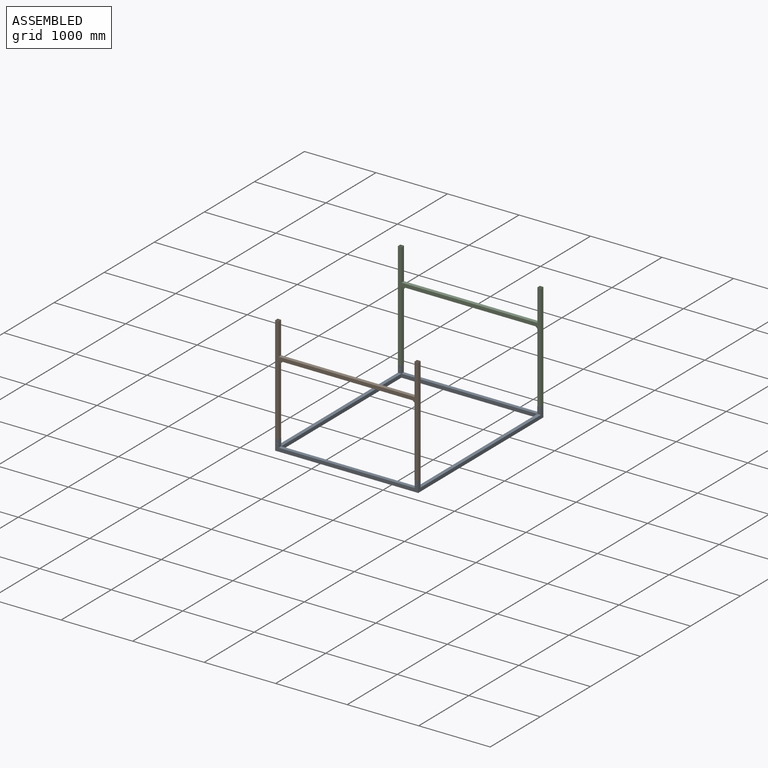
[diagram: assembled view]
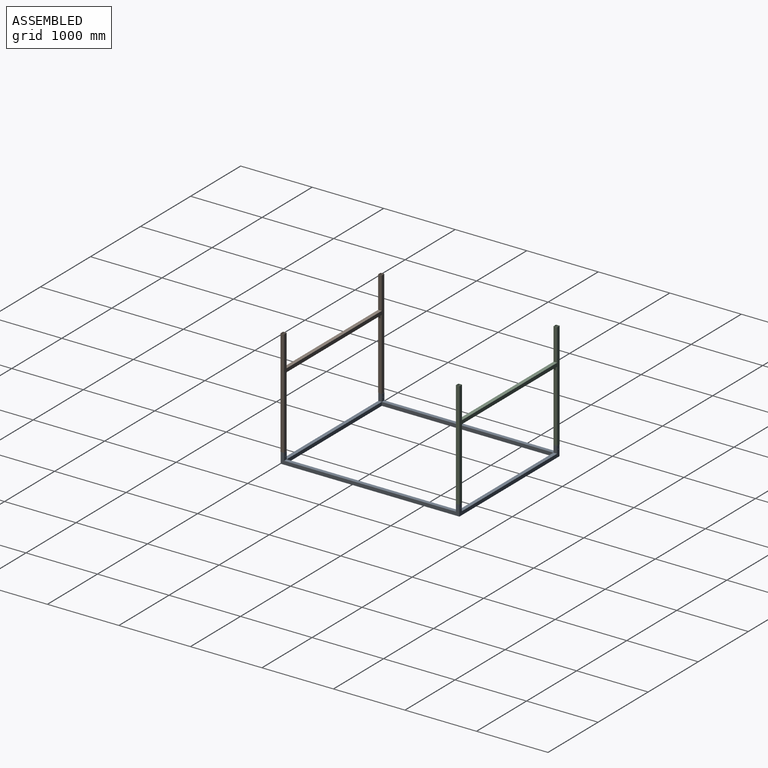
[diagram: assembled view, second angle]
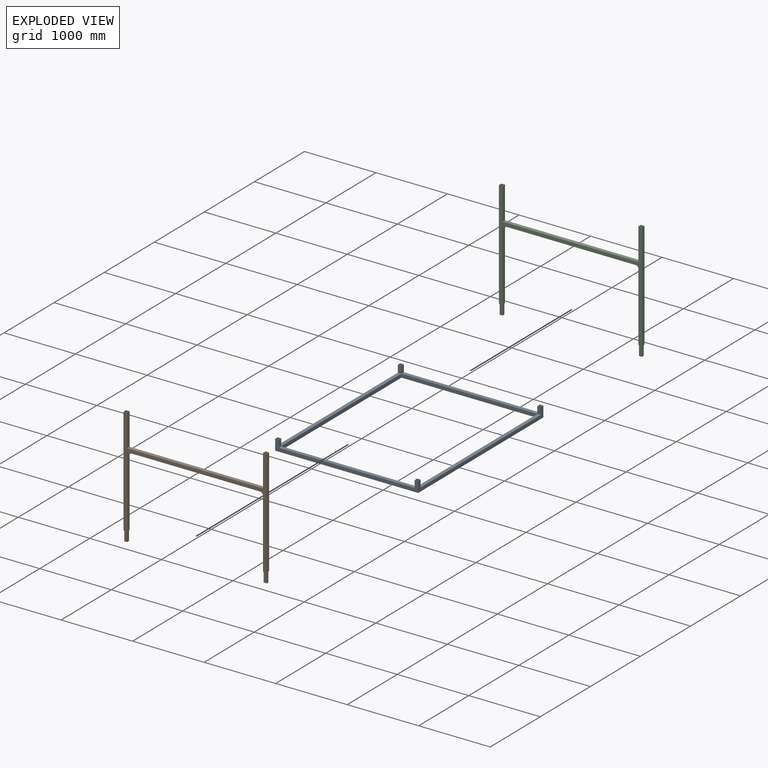
[diagram: exploded view]
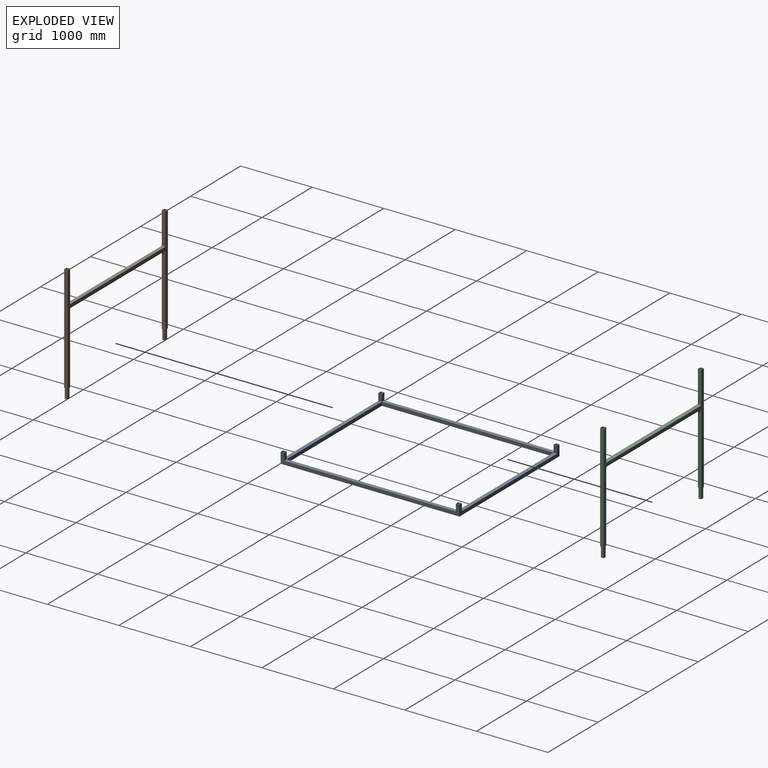
[diagram: exploded view, second angle]
ASSEMBLY  parts=3 mates=2
PART A: 54 faces, bbox 2000x2500x150 mm
  f0: plane 2410x40mm, normal (0,0,-1), area 96400mm2, adj f4,f8,f14,f19
  f1: plane 1910x40mm, normal (0,0,-1), area 76400mm2, adj f5,f7,f18,f20
  f2: plane 2410x40mm, normal (0,0,-1), area 96400mm2, adj f6,f10,f15,f17
  f3: plane 1910x40mm, normal (0,0,-1), area 76400mm2, adj f9,f11,f13,f16
  f4: plane 2410x40mm, normal (-1,0,0), area 96400mm2, adj f0,f5,f11,f12
  f5: plane 1910x40mm, normal (0,1,0), area 76400mm2, adj f1,f4,f6,f12
  f6: plane 2410x40mm, normal (1,0,0), area 96400mm2, adj f2,f5,f11,f12
  f7: plane 1990x145mm, normal (0,-1,0), area 87842.9mm2, adj f1,f8,f10,f12,f18,f20,f23,f24
  f8: plane 2490x145mm, normal (1,0,0), area 108000mm2, adj f0,f7,f9,f12,f14,f19,f21,f24
  f9: plane 1990x145mm, normal (0,1,0), area 87842.9mm2, adj f3,f8,f10,f12,f13,f16,f21,f22
  f10: plane 2490x145mm, normal (-1,0,0), area 108000mm2, adj f2,f7,f9,f12,f15,f17,f22,f23
  f11: plane 1910x40mm, normal (0,-1,0), area 76400mm2, adj f3,f4,f6,f12
  f12: plane 2490x1990mm, normal (0,0,1), area 352000mm2, adj f4,f5,f6,f7,f8,f9,f10,f11
  f13: plane 105x40mm, normal (-1,0,0), area 4200mm2, adj f3,f9,f14,f21
  f14: plane 105x40mm, normal (0,-1,0), area 4121.5mm2, adj f0,f8,f13,f21,f49
  f15: plane 105x40mm, normal (0,-1,0), area 4121.5mm2, adj f2,f10,f16,f22,f48
  f16: plane 105x40mm, normal (1,0,0), area 4200mm2, adj f3,f9,f15,f22
  f17: plane 105x40mm, normal (0,1,0), area 4121.5mm2, adj f2,f10,f18,f23,f47
  f18: plane 105x40mm, normal (1,0,0), area 4200mm2, adj f1,f7,f17,f23
  f19: plane 105x40mm, normal (0,1,0), area 4121.5mm2, adj f0,f8,f20,f24,f46
  f20: plane 105x40mm, normal (-1,0,0), area 4200mm2, adj f1,f7,f19,f24
  f21: plane 50x50mm, normal (0,0,1), area 900mm2, adj f8,f9,f13,f14,f33,f34,f38,f39
  f22: plane 50x50mm, normal (0,0,1), area 900mm2, adj f9,f10,f15,f16,f34,f35,f40,f41
  f23: plane 50x50mm, normal (0,0,1), area 900mm2, adj f7,f10,f17,f18,f32,f35,f42,f43
  f24: plane 50x50mm, normal (0,0,1), area 900mm2, adj f7,f8,f19,f20,f32,f33,f44,f45
  f25: plane 2400x50mm, normal (0,0,1), area 120000mm2, adj f29,f33,f39,f44
  f26: plane 1900x50mm, normal (0,0,1), area 95000mm2, adj f30,f32,f43,f45
  f27: plane 2400x50mm, normal (0,0,1), area 120000mm2, adj f31,f35,f40,f42
  f28: plane 1900x50mm, normal (0,0,1), area 95000mm2, adj f34,f36,f38,f41
  f29: plane 2400x50mm, normal (1,0,0), area 120000mm2, adj f25,f30,f36,f37
  f30: plane 1900x50mm, normal (0,-1,0), area 95000mm2, adj f26,f29,f31,f37
  f31: plane 2400x50mm, normal (-1,0,0), area 120000mm2, adj f27,f30,f36,f37
  f32: plane 2000x150mm, normal (0,1,0), area 109842.9mm2, adj f23,f24,f26,f33,f35,f37,f43,f45
  f33: plane 2500x150mm, normal (-1,0,0), area 135000mm2, adj f21,f24,f25,f32,f34,f37,f39,f44
  f34: plane 2000x150mm, normal (0,-1,0), area 109842.9mm2, adj f21,f22,f28,f33,f35,f37,f38,f41
  f35: plane 2500x150mm, normal (1,0,0), area 135000mm2, adj f22,f23,f27,f32,f34,f37,f40,f42
  f36: plane 1900x50mm, normal (0,1,0), area 95000mm2, adj f28,f29,f31,f37
  f37: plane 2500x2000mm, normal (0,0,-1), area 440000mm2, adj f29,f30,f31,f32,f33,f34,f35,f36
  f38: plane 100x50mm, normal (1,0,0), area 5000mm2, adj f21,f28,f34,f39
  f39: plane 100x50mm, normal (0,1,0), area 4921.5mm2, adj f21,f25,f33,f38,f49
  f40: plane 100x50mm, normal (0,1,0), area 4921.5mm2, adj f22,f27,f35,f41,f48
  f41: plane 100x50mm, normal (-1,0,0), area 5000mm2, adj f22,f28,f34,f40
  f42: plane 100x50mm, normal (0,-1,0), area 4921.5mm2, adj f23,f27,f35,f43,f47
  f43: plane 100x50mm, normal (-1,0,0), area 5000mm2, adj f23,f26,f32,f42
  f44: plane 100x50mm, normal (0,-1,0), area 4921.5mm2, adj f24,f25,f33,f45,f46
  f45: plane 100x50mm, normal (1,0,0), area 5000mm2, adj f24,f26,f32,f44
  f46: cylinder r=5mm len=10mm, axis (0,1,0), area 157.1mm2, adj f19,f44
  f47: cylinder r=5mm len=10mm, axis (0,1,0), area 157.1mm2, adj f17,f42
  f48: cylinder r=5mm len=10mm, axis (0,1,0), area 157.1mm2, adj f15,f40
  f49: cylinder r=5mm len=10mm, axis (0,1,0), area 157.1mm2, adj f14,f39
  f50: cylinder r=5mm len=10mm, axis (0,1,0), area 157.1mm2, adj f9,f34
  f51: cylinder r=5mm len=10mm, axis (0,1,0), area 157.1mm2, adj f9,f34
  f52: cylinder r=5mm len=10mm, axis (0,1,0), area 157.1mm2, adj f7,f32
  f53: cylinder r=5mm len=10mm, axis (0,1,0), area 157.1mm2, adj f7,f32
PART B: 54 faces, bbox 2000x50x1640 mm
  f0: plane 50x50mm, normal (0,0,1), area 900mm2, adj f10,f11,f14,f15,f36,f37,f40,f41
  f1: plane 50x50mm, normal (0,0,1), area 900mm2, adj f7,f13,f14,f15,f33,f39,f40,f41
  f2: plane 40x38mm, normal (0,0,-1), area 680mm2, adj f26,f27,f28,f29,f46,f47,f48,f49
  f3: plane 40x38mm, normal (0,0,-1), area 680mm2, adj f22,f23,f24,f25,f42,f43,f44,f45
  f4: plane 50x50mm, normal (0,0,-1), area 980mm2, adj f6,f10,f14,f15,f26,f27,f28,f29
  f5: plane 50x50mm, normal (0,0,-1), area 980mm2, adj f7,f8,f14,f15,f22,f23,f24,f25
  f6: plane 1000x50mm, normal (-1,0,0), area 49500mm2, adj f4,f9,f14,f15,f19,f20,f21
  f7: plane 1500x50mm, normal (-1,0,0), area 75000mm2, adj f1,f5,f14,f15
  f8: plane 1000x50mm, normal (1,0,0), area 49500mm2, adj f5,f9,f14,f15,f16,f17,f18
  f9: plane 1900x50mm, normal (0,0,-1), area 94000mm2, adj f6,f8,f14,f15,f16,f17,f18,f19
  f10: plane 1500x50mm, normal (1,0,0), area 75000mm2, adj f0,f4,f14,f15
  f11: plane 450x50mm, normal (-1,0,0), area 22500mm2, adj f0,f12,f14,f15
  f12: plane 1900x50mm, normal (0,0,1), area 95000mm2, adj f11,f13,f14,f15
  f13: plane 450x50mm, normal (1,0,0), area 22500mm2, adj f1,f12,f14,f15
  f14: plane 2000x1500mm, normal (0,-1,0), area 245000mm2, adj f0,f1,f4,f5,f6,f7,f8,f9
  f15: plane 2000x1500mm, normal (0,1,0), area 245000mm2, adj f0,f1,f4,f5,f6,f7,f8,f9
  f16: plane 50x50mm, normal (0,1,0), area 1250mm2, adj f8,f9,f18
  f17: plane 50x50mm, normal (0,-1,0), area 1250mm2, adj f8,f9,f18
  f18: plane 50x50mm, normal (0.71,0,-0.71), area 707.1mm2, adj f8,f9,f16,f17
  f19: plane 50x50mm, normal (0,1,0), area 1250mm2, adj f6,f9,f21
  f20: plane 50x50mm, normal (0,-1,0), area 1250mm2, adj f6,f9,f21
  f21: plane 50x50mm, normal (-0.71,0,-0.71), area 707.1mm2, adj f6,f9,f19,f20
  f22: plane 140x38mm, normal (-1,0,0), area 5320mm2, adj f3,f5,f24,f25
  f23: plane 140x38mm, normal (1,0,0), area 5320mm2, adj f3,f5,f24,f25
  f24: plane 140x40mm, normal (0,1,0), area 5521.5mm2, adj f3,f5,f22,f23,f53
  f25: plane 140x40mm, normal (0,-1,0), area 5521.5mm2, adj f3,f5,f22,f23,f52
  f26: plane 140x38mm, normal (1,0,0), area 5320mm2, adj f2,f4,f28,f29
  f27: plane 140x38mm, normal (-1,0,0), area 5320mm2, adj f2,f4,f28,f29
  f28: plane 140x40mm, normal (0,1,0), area 5521.5mm2, adj f2,f4,f26,f27,f51
  f29: plane 140x40mm, normal (0,-1,0), area 5521.5mm2, adj f2,f4,f26,f27,f50
  f30: plane 40x40mm, normal (0,0,1), area 760mm2, adj f32,f36,f40,f41,f46,f47,f48,f49
  f31: plane 40x40mm, normal (0,0,1), area 760mm2, adj f33,f34,f40,f41,f42,f43,f44,f45
  f32: plane 1000x40mm, normal (1,0,0), area 40000mm2, adj f30,f35,f40,f41
  f33: plane 1495x40mm, normal (1,0,0), area 59800mm2, adj f1,f31,f40,f41
  f34: plane 1000x40mm, normal (-1,0,0), area 40000mm2, adj f31,f35,f40,f41
  f35: plane 1910x40mm, normal (0,0,1), area 76400mm2, adj f32,f34,f40,f41
  f36: plane 1495x40mm, normal (-1,0,0), area 59800mm2, adj f0,f30,f40,f41
  f37: plane 455x40mm, normal (1,0,0), area 18200mm2, adj f0,f38,f40,f41
  f38: plane 1910x40mm, normal (0,0,-1), area 76400mm2, adj f37,f39,f40,f41
  f39: plane 455x40mm, normal (-1,0,0), area 18200mm2, adj f1,f38,f40,f41
  f40: plane 1990x1495mm, normal (0,1,0), area 196000mm2, adj f0,f1,f30,f31,f32,f33,f34,f35
  f41: plane 1990x1495mm, normal (0,-1,0), area 196000mm2, adj f0,f1,f30,f31,f32,f33,f34,f35
  f42: plane 145x28mm, normal (1,0,0), area 4060mm2, adj f3,f31,f44,f45
  f43: plane 145x28mm, normal (-1,0,0), area 4060mm2, adj f3,f31,f44,f45
  f44: plane 145x30mm, normal (0,-1,0), area 4271.5mm2, adj f3,f31,f42,f43,f53
  f45: plane 145x30mm, normal (0,1,0), area 4271.5mm2, adj f3,f31,f42,f43,f52
  f46: plane 145x28mm, normal (-1,0,0), area 4060mm2, adj f2,f30,f48,f49
  f47: plane 145x28mm, normal (1,0,0), area 4060mm2, adj f2,f30,f48,f49
  f48: plane 145x30mm, normal (0,-1,0), area 4271.5mm2, adj f2,f30,f46,f47,f51
  f49: plane 145x30mm, normal (0,1,0), area 4271.5mm2, adj f2,f30,f46,f47,f50
  f50: cylinder r=5mm len=10mm, axis (0,1,0), area 157.1mm2, adj f29,f49
  f51: cylinder r=5mm len=10mm, axis (0,1,0), area 157.1mm2, adj f28,f48
  f52: cylinder r=5mm len=10mm, axis (0,1,0), area 157.1mm2, adj f25,f45
  f53: cylinder r=5mm len=10mm, axis (0,1,0), area 157.1mm2, adj f24,f44
PART C: same geometry as B
PLACE A t=(-557.35,-929.7,-776.03)mm
PLACE B t=(-557.35,-905.7,-626.03)mm
PLACE C t=(-557.35,1546.3,-626.03)mm
MATE fastened A.f47 <-> C.f50  axis (0,-1,0) through (417.65,1565.3,-676.03)mm
MATE fastened A.f46 <-> B.f52  axis (0,1,0) through (-1532.35,-924.7,-676.03)mm
